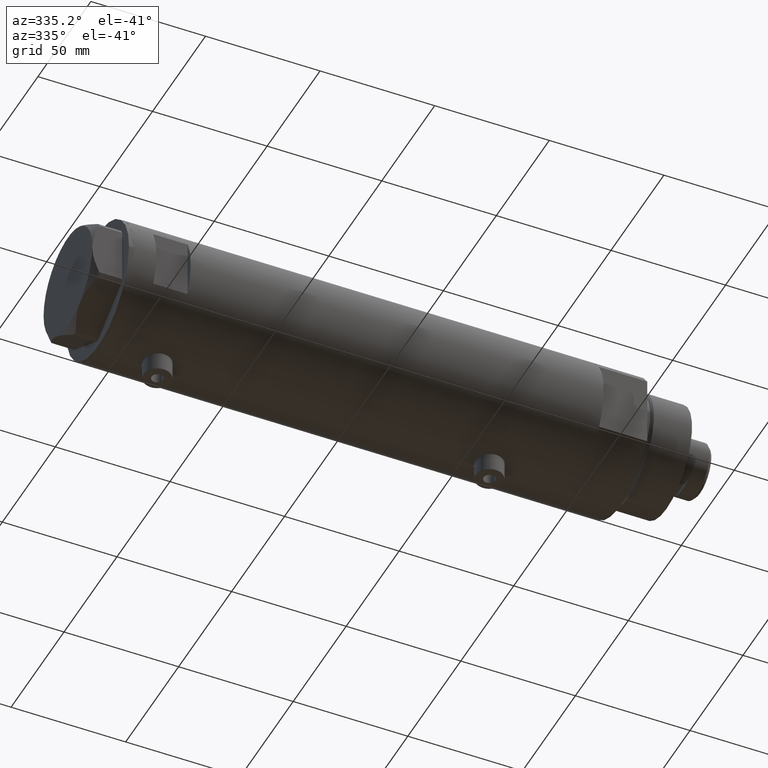
[diagram: clean part render]
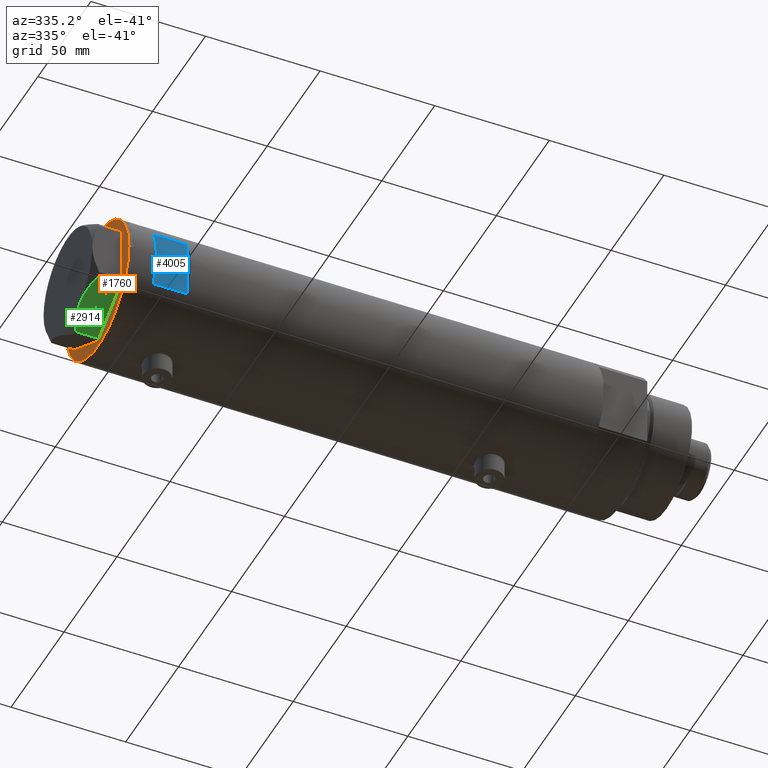
[diagram: same view with three faces highlighted in distinct colors, each labeled with its STEP entity id]
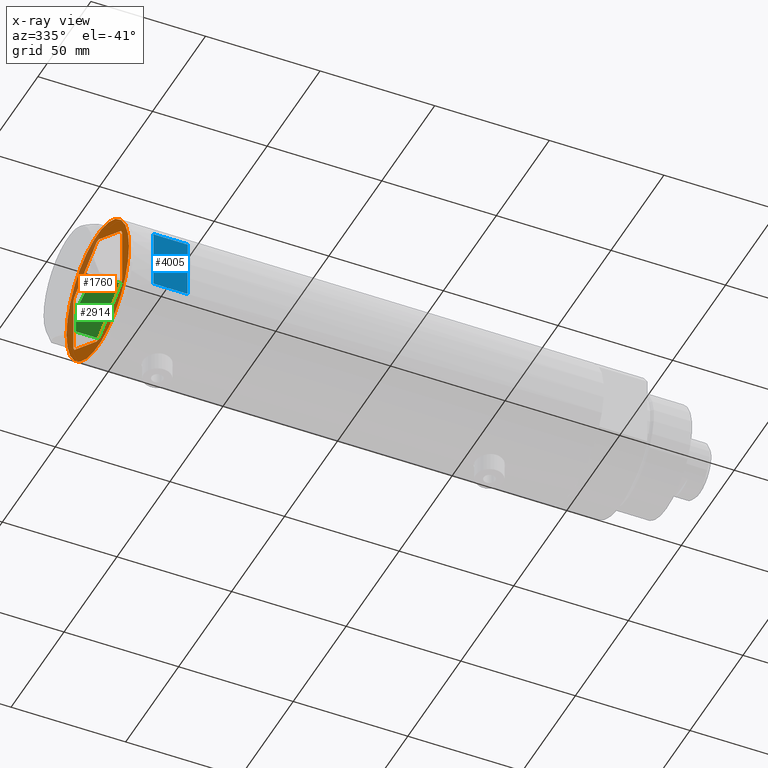
[diagram: x-ray of the same camera — body ghosted, the three highlighted faces saturated]
A machine part, auxiliary view with three faces highlighted in distinct colors.
The next image is the same camera in x-ray (body ghosted, the three faces saturated) — at least one of them is partly hidden behind the body in this view.
Their STEP definitions:

[orange] entity #1760 — the highlighted planar face has unit normal (1, 0, -0).
#28 = EDGE_CURVE ( 'NONE', #2338, #2714, #2885, .T. ) ;
#41 = LINE ( 'NONE', #838, #1464 ) ;
#48 = LINE ( 'NONE', #1531, #2710 ) ;
#59 = CARTESIAN_POINT ( 'NONE',  ( -0.9699484522383873264, -25.99811238272275205, 0.000000000000000000 ) ) ;
#83 = PLANE ( 'NONE',  #2669 ) ;
#89 = AXIS2_PLACEMENT_3D ( 'NONE', #3089, #2795, #1298 ) ;
#108 = ORIENTED_EDGE ( 'NONE', *, *, #4484, .F. ) ;
#116 = DIRECTION ( 'NONE',  ( -1.000000000000000000, -7.153879041605523216E-15, -0.000000000000000000 ) ) ;
#135 = AXIS2_PLACEMENT_3D ( 'NONE', #2986, #3394, #2616 ) ;
#155 = ORIENTED_EDGE ( 'NONE', *, *, #3692, .T. ) ;
#174 = CARTESIAN_POINT ( 'NONE',  ( -22.03005154776132102, -13.83905619136147536, 0.000000000000000000 ) ) ;
#219 = ORIENTED_EDGE ( 'NONE', *, *, #3856, .T. ) ;
#403 = EDGE_CURVE ( 'NONE', #2338, #525, #1723, .T. ) ;
#420 = VECTOR ( 'NONE', #4628, 1000.000000000000000 ) ;
#523 = FACE_BOUND ( 'NONE', #2375, .T. ) ;
#525 = VERTEX_POINT ( 'NONE', #3290 ) ;
#550 = EDGE_CURVE ( 'NONE', #1340, #977, #1380, .T. ) ;
#578 = LINE ( 'NONE', #2825, #4517 ) ;
#653 = CARTESIAN_POINT ( 'NONE',  ( 23.00000000000007461, -12.15905619136117721, 0.000000000000000000 ) ) ;
#770 = EDGE_CURVE ( 'NONE', #4615, #2714, #578, .T. ) ;
#796 = LINE ( 'NONE', #3721, #3669 ) ;
#831 = ORIENTED_EDGE ( 'NONE', *, *, #403, .F. ) ;
#838 = CARTESIAN_POINT ( 'NONE',  ( -22.51502577388055215, -12.99905619136159629, 0.000000000000000000 ) ) ;
#977 = VERTEX_POINT ( 'NONE', #1834 ) ;
#990 = LINE ( 'NONE', #3269, #4073 ) ;
#1089 = EDGE_CURVE ( 'NONE', #4615, #1727, #1229, .T. ) ;
#1112 = CARTESIAN_POINT ( 'NONE',  ( -9.299367564803055752E-14, 25.99811238272273428, 0.000000000000000000 ) ) ;
#1119 = VECTOR ( 'NONE', #116, 1000.000000000000000 ) ;
#1157 = DIRECTION ( 'NONE',  ( -0.8660254037844380415, -0.5000000000000008882, 0.000000000000000000 ) ) ;
#1179 = FACE_OUTER_BOUND ( 'NONE', #4246, .T. ) ;
#1229 = LINE ( 'NONE', #2264, #1119 ) ;
#1235 = EDGE_CURVE ( 'NONE', #3753, #3832, #1617, .T. ) ;
#1263 = CARTESIAN_POINT ( 'NONE',  ( -22.99999999999990763, -12.15905619136148985, 0.000000000000000000 ) ) ;
#1298 = DIRECTION ( 'NONE',  ( -1.000000000000000000, 0.000000000000000000, 0.000000000000000000 ) ) ;
#1332 = LINE ( 'NONE', #2420, #3249 ) ;
#1340 = VERTEX_POINT ( 'NONE', #1348 ) ;
#1348 = CARTESIAN_POINT ( 'NONE',  ( -0.9699484522385893870, 25.99811238272273073, 0.000000000000000000 ) ) ;
#1380 = LINE ( 'NONE', #1112, #3510 ) ;
#1390 = CARTESIAN_POINT ( 'NONE',  ( 0.9699484522387533669, -25.99811238272273428, 0.000000000000000000 ) ) ;
#1399 = CIRCLE ( 'NONE', #89, 29.50000000000000355 ) ;
#1461 = ORIENTED_EDGE ( 'NONE', *, *, #550, .T. ) ;
#1464 = VECTOR ( 'NONE', #3744, 1000.000000000000000 ) ;
#1484 = EDGE_CURVE ( 'NONE', #1340, #4707, #796, .T. ) ;
#1491 = ORIENTED_EDGE ( 'NONE', *, *, #28, .T. ) ;
#1531 = CARTESIAN_POINT ( 'NONE',  ( -22.51502577388069781, 12.99905619136134050, 0.000000000000000000 ) ) ;
#1553 = DIRECTION ( 'NONE',  ( 0.4999999999999986677, 0.8660254037844392627, -0.000000000000000000 ) ) ;
#1617 = LINE ( 'NONE', #3890, #3518 ) ;
#1642 = ORIENTED_EDGE ( 'NONE', *, *, #2145, .F. ) ;
#1652 = CARTESIAN_POINT ( 'NONE',  ( 22.03005154776153773, -13.83905619136115561, 0.000000000000000000 ) ) ;
#1723 = LINE ( 'NONE', #3153, #420 ) ;
#1727 = VERTEX_POINT ( 'NONE', #59 ) ;
#1743 = LINE ( 'NONE', #2949, #2090 ) ;
#1760 = ADVANCED_FACE ( 'NONE', ( #523, #1179 ), #83, .F. ) ;
#1777 = ORIENTED_EDGE ( 'NONE', *, *, #770, .F. ) ;
#1795 = DIRECTION ( 'NONE',  ( -0.4999999999999915623, -0.8660254037844434816, -0.000000000000000000 ) ) ;
#1834 = CARTESIAN_POINT ( 'NONE',  ( 0.9699484522385886098, 25.99811238272273783, 0.000000000000000000 ) ) ;
#1909 = CIRCLE ( 'NONE', #135, 29.50000000000000355 ) ;
#2052 = DIRECTION ( 'NONE',  ( 0.8660254037844345998, 0.5000000000000069944, 0.000000000000000000 ) ) ;
#2090 = VECTOR ( 'NONE', #2170, 999.9999999999998863 ) ;
#2145 = EDGE_CURVE ( 'NONE', #3689, #4324, #1909, .T. ) ;
#2170 = DIRECTION ( 'NONE',  ( 0.5000000000000086597, -0.8660254037844337116, -0.000000000000000000 ) ) ;
#2177 = DIRECTION ( 'NONE',  ( 0.8660254037844415942, -0.4999999999999950595, 0.000000000000000000 ) ) ;
#2264 = CARTESIAN_POINT ( 'NONE',  ( 1.859873512960652550E-13, -25.99811238272274139, 0.000000000000000000 ) ) ;
#2308 = EDGE_CURVE ( 'NONE', #3812, #1727, #990, .T. ) ;
#2309 = ORIENTED_EDGE ( 'NONE', *, *, #1484, .F. ) ;
#2314 = ORIENTED_EDGE ( 'NONE', *, *, #3743, .F. ) ;
#2338 = VERTEX_POINT ( 'NONE', #653 ) ;
#2375 = EDGE_LOOP ( 'NONE', ( #2314, #219, #831, #1491, #1777, #3065, #4168, #3189, #3712, #155, #2309, #1461 ) ) ;
#2420 = CARTESIAN_POINT ( 'NONE',  ( 22.99999999999981171, 13.27905619136164184, 0.000000000000000000 ) ) ;
#2616 = DIRECTION ( 'NONE',  ( -1.000000000000000000, 0.000000000000000000, 0.000000000000000000 ) ) ;
#2669 = AXIS2_PLACEMENT_3D ( 'NONE', #3040, #3012, #2727 ) ;
#2710 = VECTOR ( 'NONE', #1553, 1000.000000000000227 ) ;
#2712 = CARTESIAN_POINT ( 'NONE',  ( 29.50000000000000355, 0.000000000000000000, 0.000000000000000000 ) ) ;
#2714 = VERTEX_POINT ( 'NONE', #1652 ) ;
#2727 = DIRECTION ( 'NONE',  ( -1.000000000000000000, 0.000000000000000000, -0.000000000000000000 ) ) ;
#2795 = DIRECTION ( 'NONE',  ( 0.000000000000000000, 0.000000000000000000, -1.000000000000000000 ) ) ;
#2825 = CARTESIAN_POINT ( 'NONE',  ( 1.854543075583504180E-13, -26.55811238272274366, 0.000000000000000000 ) ) ;
#2856 = DIRECTION ( 'NONE',  ( 1.000000000000000000, 3.576939520802682722E-15, -0.000000000000000000 ) ) ;
#2885 = LINE ( 'NONE', #4408, #3425 ) ;
#2949 = CARTESIAN_POINT ( 'NONE',  ( 22.51502577388055926, 12.99905619136160162, 0.000000000000000000 ) ) ;
#2958 = EDGE_CURVE ( 'NONE', #3812, #3832, #41, .T. ) ;
#2986 = CARTESIAN_POINT ( 'NONE',  ( 0.000000000000000000, 0.000000000000000000, 0.000000000000000000 ) ) ;
#3012 = DIRECTION ( 'NONE',  ( 0.000000000000000000, 0.000000000000000000, -1.000000000000000000 ) ) ;
#3040 = CARTESIAN_POINT ( 'NONE',  ( 0.000000000000000000, 0.000000000000000000, 0.000000000000000000 ) ) ;
#3065 = ORIENTED_EDGE ( 'NONE', *, *, #1089, .T. ) ;
#3089 = CARTESIAN_POINT ( 'NONE',  ( 0.000000000000000000, 0.000000000000000000, 0.000000000000000000 ) ) ;
#3153 = CARTESIAN_POINT ( 'NONE',  ( 23.00000000000008527, -13.27905619136115867, 0.000000000000000000 ) ) ;
#3189 = ORIENTED_EDGE ( 'NONE', *, *, #2958, .T. ) ;
#3249 = VECTOR ( 'NONE', #4579, 999.9999999999998863 ) ;
#3269 = CARTESIAN_POINT ( 'NONE',  ( -22.99999999999990408, -13.27905619136147841, 0.000000000000000000 ) ) ;
#3290 = CARTESIAN_POINT ( 'NONE',  ( 22.99999999999982236, 12.15905619136166571, 0.000000000000000000 ) ) ;
#3394 = DIRECTION ( 'NONE',  ( 0.000000000000000000, 0.000000000000000000, -1.000000000000000000 ) ) ;
#3425 = VECTOR ( 'NONE', #1795, 1000.000000000000000 ) ;
#3438 = CARTESIAN_POINT ( 'NONE',  ( -22.03005154776141339, 13.83905619136132792, 0.000000000000000000 ) ) ;
#3510 = VECTOR ( 'NONE', #2856, 1000.000000000000000 ) ;
#3518 = VECTOR ( 'NONE', #4224, 1000.000000000000000 ) ;
#3669 = VECTOR ( 'NONE', #1157, 1000.000000000000227 ) ;
#3689 = VERTEX_POINT ( 'NONE', #2712 ) ;
#3692 = EDGE_CURVE ( 'NONE', #3753, #4707, #48, .T. ) ;
#3712 = ORIENTED_EDGE ( 'NONE', *, *, #1235, .F. ) ;
#3721 = CARTESIAN_POINT ( 'NONE',  ( 0.000000000000000000, 26.55811238272274366, 0.000000000000000000 ) ) ;
#3743 = EDGE_CURVE ( 'NONE', #4460, #977, #1332, .T. ) ;
#3744 = DIRECTION ( 'NONE',  ( -0.5000000000000086597, 0.8660254037844337116, -0.000000000000000000 ) ) ;
#3753 = VERTEX_POINT ( 'NONE', #3849 ) ;
#3812 = VERTEX_POINT ( 'NONE', #174 ) ;
#3832 = VERTEX_POINT ( 'NONE', #1263 ) ;
#3849 = CARTESIAN_POINT ( 'NONE',  ( -22.99999999999999289, 12.15905619136131754, 0.000000000000000000 ) ) ;
#3856 = EDGE_CURVE ( 'NONE', #4460, #525, #1743, .T. ) ;
#3890 = CARTESIAN_POINT ( 'NONE',  ( -22.99999999999999645, 13.27905619136132032, 0.000000000000000000 ) ) ;
#4073 = VECTOR ( 'NONE', #2177, 1000.000000000000000 ) ;
#4168 = ORIENTED_EDGE ( 'NONE', *, *, #2308, .F. ) ;
#4198 = CARTESIAN_POINT ( 'NONE',  ( 22.03005154776124996, 13.83905619136162635, 0.000000000000000000 ) ) ;
#4224 = DIRECTION ( 'NONE',  ( 3.527173405730720141E-15, -1.000000000000000000, 0.000000000000000000 ) ) ;
#4246 = EDGE_LOOP ( 'NONE', ( #1642, #108 ) ) ;
#4324 = VERTEX_POINT ( 'NONE', #4688 ) ;
#4408 = CARTESIAN_POINT ( 'NONE',  ( 22.51502577388080795, -12.99905619136115398, 0.000000000000000000 ) ) ;
#4460 = VERTEX_POINT ( 'NONE', #4198 ) ;
#4484 = EDGE_CURVE ( 'NONE', #4324, #3689, #1399, .T. ) ;
#4517 = VECTOR ( 'NONE', #2052, 999.9999999999998863 ) ;
#4579 = DIRECTION ( 'NONE',  ( -0.8660254037844415942, 0.4999999999999949485, 0.000000000000000000 ) ) ;
#4615 = VERTEX_POINT ( 'NONE', #1390 ) ;
#4628 = DIRECTION ( 'NONE',  ( -1.032024811306395780E-14, 1.000000000000000000, 0.000000000000000000 ) ) ;
#4688 = CARTESIAN_POINT ( 'NONE',  ( -29.50000000000000355, 3.612708057484692393E-15, 0.000000000000000000 ) ) ;
#4707 = VERTEX_POINT ( 'NONE', #3438 ) ;

[blue] entity #4005 — the highlighted planar face has unit normal (-0, 1, 0).
#8 = ORIENTED_EDGE ( 'NONE', *, *, #2842, .T. ) ;
#289 = DIRECTION ( 'NONE',  ( 0.000000000000000000, 0.000000000000000000, 1.000000000000000000 ) ) ;
#291 = ORIENTED_EDGE ( 'NONE', *, *, #4667, .T. ) ;
#486 = CARTESIAN_POINT ( 'NONE',  ( -29.50000000000000355, -26.50000000000000355, 92.59999999999999432 ) ) ;
#715 = CARTESIAN_POINT ( 'NONE',  ( -12.96148139681573319, -26.49999999999999645, -102.5999999999999943 ) ) ;
#724 = VECTOR ( 'NONE', #3217, 1000.000000000000000 ) ;
#877 = ORIENTED_EDGE ( 'NONE', *, *, #969, .T. ) ;
#878 = VERTEX_POINT ( 'NONE', #2193 ) ;
#969 = EDGE_CURVE ( 'NONE', #878, #4631, #1739, .T. ) ;
#1091 = VECTOR ( 'NONE', #4078, 1000.000000000000000 ) ;
#1122 = DIRECTION ( 'NONE',  ( 1.000000000000000000, -0.000000000000000000, -0.000000000000000000 ) ) ;
#1239 = CARTESIAN_POINT ( 'NONE',  ( -29.50000000000000355, -26.50000000000000355, 77.59999999999999432 ) ) ;
#1446 = LINE ( 'NONE', #2922, #2784 ) ;
#1739 = LINE ( 'NONE', #715, #724 ) ;
#1826 = LINE ( 'NONE', #3251, #2587 ) ;
#2030 = EDGE_CURVE ( 'NONE', #878, #2776, #1826, .T. ) ;
#2041 = VERTEX_POINT ( 'NONE', #3298 ) ;
#2193 = CARTESIAN_POINT ( 'NONE',  ( -12.96148139681573319, -26.49999999999998934, 92.59999999999999432 ) ) ;
#2318 = DIRECTION ( 'NONE',  ( 0.000000000000000000, 1.000000000000000000, 0.000000000000000000 ) ) ;
#2587 = VECTOR ( 'NONE', #1122, 1000.000000000000000 ) ;
#2605 = FACE_OUTER_BOUND ( 'NONE', #3213, .T. ) ;
#2776 = VERTEX_POINT ( 'NONE', #3940 ) ;
#2784 = VECTOR ( 'NONE', #289, 1000.000000000000000 ) ;
#2842 = EDGE_CURVE ( 'NONE', #2041, #2776, #1446, .T. ) ;
#2922 = CARTESIAN_POINT ( 'NONE',  ( 12.96148139681573319, -26.49999999999999645, -102.5999999999999943 ) ) ;
#2964 = LINE ( 'NONE', #1239, #1091 ) ;
#2989 = ORIENTED_EDGE ( 'NONE', *, *, #2030, .F. ) ;
#3213 = EDGE_LOOP ( 'NONE', ( #877, #291, #8, #2989 ) ) ;
#3217 = DIRECTION ( 'NONE',  ( -0.000000000000000000, -0.000000000000000000, -1.000000000000000000 ) ) ;
#3251 = CARTESIAN_POINT ( 'NONE',  ( -29.50000000000000355, -26.50000000000000355, 92.59999999999999432 ) ) ;
#3298 = CARTESIAN_POINT ( 'NONE',  ( 12.96148139681573319, -26.49999999999998934, 77.59999999999996589 ) ) ;
#3723 = PLANE ( 'NONE',  #3945 ) ;
#3747 = DIRECTION ( 'NONE',  ( 0.000000000000000000, -0.000000000000000000, 1.000000000000000000 ) ) ;
#3940 = CARTESIAN_POINT ( 'NONE',  ( 12.96148139681573319, -26.49999999999998934, 92.59999999999999432 ) ) ;
#3945 = AXIS2_PLACEMENT_3D ( 'NONE', #486, #2318, #3747 ) ;
#4003 = CARTESIAN_POINT ( 'NONE',  ( -12.96148139681573319, -26.49999999999998934, 77.59999999999996589 ) ) ;
#4005 = ADVANCED_FACE ( 'NONE', ( #2605 ), #3723, .F. ) ;
#4078 = DIRECTION ( 'NONE',  ( 1.000000000000000000, -0.000000000000000000, -0.000000000000000000 ) ) ;
#4631 = VERTEX_POINT ( 'NONE', #4003 ) ;
#4667 = EDGE_CURVE ( 'NONE', #4631, #2041, #2964, .T. ) ;

[green] entity #2914 — the highlighted planar face has unit normal (0, 0.5, 0.866).
#70 = CARTESIAN_POINT ( 'NONE',  ( -0.9699484522385897201, 25.99811238272273073, 13.00000000000000000 ) ) ;
#258 = CARTESIAN_POINT ( 'NONE',  ( -17.77001848220189828, 16.29858742851882525, 11.89212886775844424 ) ) ;
#327 = CARTESIAN_POINT ( 'NONE',  ( -19.07486218896993790, 15.54523556316591915, 11.39727285399141898 ) ) ;
#419 = CARTESIAN_POINT ( 'NONE',  ( -11.50000000000004441, 19.91858428704211548, 13.00000000000000000 ) ) ;
#662 = ORIENTED_EDGE ( 'NONE', *, *, #2537, .T. ) ;
#663 = CARTESIAN_POINT ( 'NONE',  ( -20.35958612119325650, 14.80349985506242838, 10.84420102443839085 ) ) ;
#705 = CARTESIAN_POINT ( 'NONE',  ( -9.197898616902921987, 21.24770314027493612, 12.85271263895580596 ) ) ;
#781 = CARTESIAN_POINT ( 'NONE',  ( -9.656518383329851574, 20.98291889467267879, 12.90784227772844162 ) ) ;
#784 = CARTESIAN_POINT ( 'NONE',  ( -11.50000000000004441, 19.91858428704211548, 13.00000000000000000 ) ) ;
#796 = LINE ( 'NONE', #3721, #3669 ) ;
#876 = LINE ( 'NONE', #4536, #4490 ) ;
#1106 = CARTESIAN_POINT ( 'NONE',  ( -0.9699484522384476115, 25.99811238272281599, 9.983800287807556018 ) ) ;
#1157 = DIRECTION ( 'NONE',  ( -0.8660254037844380415, -0.5000000000000008882, 0.000000000000000000 ) ) ;
#1254 = ORIENTED_EDGE ( 'NONE', *, *, #4632, .F. ) ;
#1337 = EDGE_CURVE ( 'NONE', #4019, #3424, #4418, .T. ) ;
#1340 = VERTEX_POINT ( 'NONE', #1348 ) ;
#1348 = CARTESIAN_POINT ( 'NONE',  ( -0.9699484522385893870, 25.99811238272273073, 0.000000000000000000 ) ) ;
#1438 = CARTESIAN_POINT ( 'NONE',  ( -17.32831362639716843, 16.55360584592005679, 12.04068176582934235 ) ) ;
#1484 = EDGE_CURVE ( 'NONE', #1340, #4707, #796, .T. ) ;
#1485 = CARTESIAN_POINT ( 'NONE',  ( -10.58093321976963175, 20.44920774001128194, 12.98168640760950510 ) ) ;
#1522 = FACE_OUTER_BOUND ( 'NONE', #3613, .T. ) ;
#1571 = PLANE ( 'NONE',  #3556 ) ;
#1586 = VERTEX_POINT ( 'NONE', #2581 ) ;
#1609 = DIRECTION ( 'NONE',  ( 0.000000000000000000, 0.000000000000000000, 1.000000000000000000 ) ) ;
#1624 = B_SPLINE_CURVE_WITH_KNOTS ( 'NONE', 3,
 ( #3574, #2916, #3640, #1438, #258, #4340, #327, #663, #1800, #3279 ),
 .UNSPECIFIED., .F., .F.,
 ( 4, 2, 2, 2, 4 ),
 ( 0.01376519981810312397, 0.01998941321701587850, 0.02154546656674406757, 0.02310151991647225664, 0.02621362661592864171 ),
 .UNSPECIFIED. ) ;
#1800 = CARTESIAN_POINT ( 'NONE',  ( -21.20080365460317751, 14.31782268570117367, 10.43131750950939818 ) ) ;
#1836 = CARTESIAN_POINT ( 'NONE',  ( 0.000000000000000000, 26.55811238272274366, 13.00000000000000000 ) ) ;
#2230 = CARTESIAN_POINT ( 'NONE',  ( -11.04134848610939557, 20.18338686205100885, 13.00000000000010125 ) ) ;
#2235 = ORIENTED_EDGE ( 'NONE', *, *, #3387, .T. ) ;
#2255 = CARTESIAN_POINT ( 'NONE',  ( -7.836767740116584058, 22.03355241838984924, 12.63731396715694899 ) ) ;
#2472 = ORIENTED_EDGE ( 'NONE', *, *, #1337, .F. ) ;
#2537 = EDGE_CURVE ( 'NONE', #4019, #1340, #3388, .T. ) ;
#2581 = CARTESIAN_POINT ( 'NONE',  ( -22.03005154776142760, 13.83905619136132259, 9.983800287807632401 ) ) ;
#2629 = DIRECTION ( 'NONE',  ( 0.8660254037844381525, 0.5000000000000008882, 0.000000000000000000 ) ) ;
#2914 = ADVANCED_FACE ( 'NONE', ( #1522 ), #1571, .F. ) ;
#2916 = CARTESIAN_POINT ( 'NONE',  ( -13.32175508098984018, 18.86679350063497296, 13.00000000000009237 ) ) ;
#2956 = ORIENTED_EDGE ( 'NONE', *, *, #1484, .T. ) ;
#2985 = CARTESIAN_POINT ( 'NONE',  ( -6.946777556903628970, 22.54738849024396075, 12.42689993760377831 ) ) ;
#3108 = VECTOR ( 'NONE', #3485, 1000.000000000000000 ) ;
#3279 = CARTESIAN_POINT ( 'NONE',  ( -22.03005154776142760, 13.83905619136132259, 9.983800287807632401 ) ) ;
#3370 = CARTESIAN_POINT ( 'NONE',  ( -4.320186229909891651, 24.06385169993495055, 11.62937486882611005 ) ) ;
#3387 = EDGE_CURVE ( 'NONE', #4707, #1586, #876, .T. ) ;
#3388 = LINE ( 'NONE', #70, #3108 ) ;
#3424 = VERTEX_POINT ( 'NONE', #784 ) ;
#3438 = CARTESIAN_POINT ( 'NONE',  ( -22.03005154776141339, 13.83905619136132792, 0.000000000000000000 ) ) ;
#3485 = DIRECTION ( 'NONE',  ( 0.000000000000000000, 0.000000000000000000, -1.000000000000000000 ) ) ;
#3556 = AXIS2_PLACEMENT_3D ( 'NONE', #1836, #4133, #2629 ) ;
#3574 = CARTESIAN_POINT ( 'NONE',  ( -11.50000000000004441, 19.91858428704211548, 13.00000000000000000 ) ) ;
#3613 = EDGE_LOOP ( 'NONE', ( #2956, #2235, #1254, #2472, #662 ) ) ;
#3640 = CARTESIAN_POINT ( 'NONE',  ( -15.11535457301031649, 17.83125835109857249, 12.70765172847700519 ) ) ;
#3669 = VECTOR ( 'NONE', #1157, 1000.000000000000227 ) ;
#3721 = CARTESIAN_POINT ( 'NONE',  ( 0.000000000000000000, 26.55811238272274366, 0.000000000000000000 ) ) ;
#3935 = CARTESIAN_POINT ( 'NONE',  ( -2.626494320835643048, 25.04170517956326236, 10.87778242614345814 ) ) ;
#4019 = VERTEX_POINT ( 'NONE', #1106 ) ;
#4133 = DIRECTION ( 'NONE',  ( 0.5000000000000008882, -0.8660254037844381525, 0.000000000000000000 ) ) ;
#4340 = CARTESIAN_POINT ( 'NONE',  ( -18.64279229058393739, 15.79469123530780372, 11.57055225522972286 ) ) ;
#4418 = B_SPLINE_CURVE_WITH_KNOTS ( 'NONE', 3,
 ( #4751, #3935, #3370, #2985, #2255, #705, #781, #1485, #2230, #419 ),
 .UNSPECIFIED., .F., .F.,
 ( 4, 2, 2, 2, 4 ),
 ( 0.001228959670438532553, 0.007497079744270828371, 0.01063113978118697921, 0.01219816979964505159, 0.01376519981810312397 ),
 .UNSPECIFIED. ) ;
#4490 = VECTOR ( 'NONE', #1609, 1000.000000000000000 ) ;
#4536 = CARTESIAN_POINT ( 'NONE',  ( -22.03005154776142049, 13.83905619136132614, 13.00000000000000000 ) ) ;
#4632 = EDGE_CURVE ( 'NONE', #3424, #1586, #1624, .T. ) ;
#4707 = VERTEX_POINT ( 'NONE', #3438 ) ;
#4751 = CARTESIAN_POINT ( 'NONE',  ( -0.9699484522384476115, 25.99811238272281599, 9.983800287807556018 ) ) ;